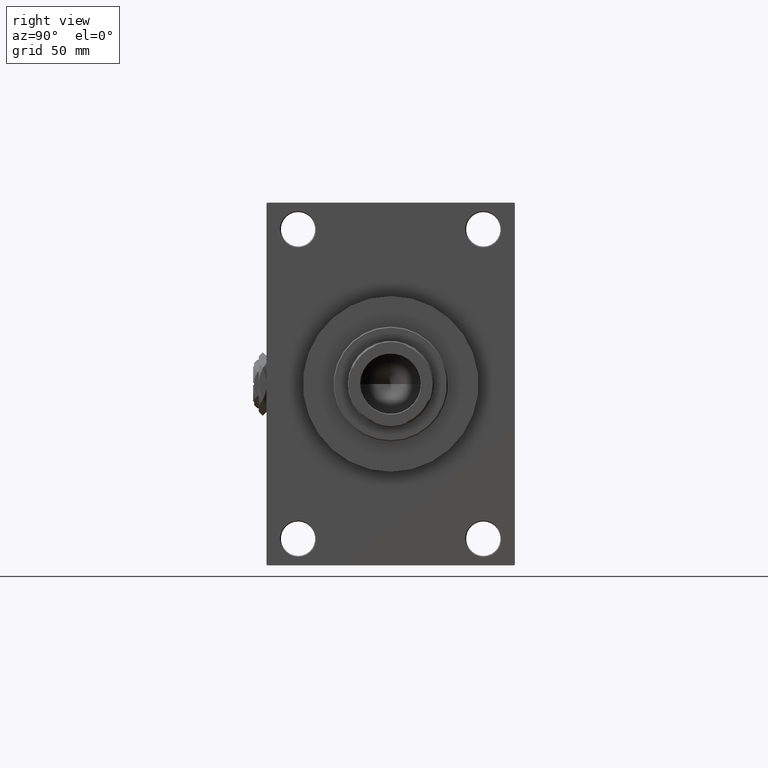
[diagram: clean part render]
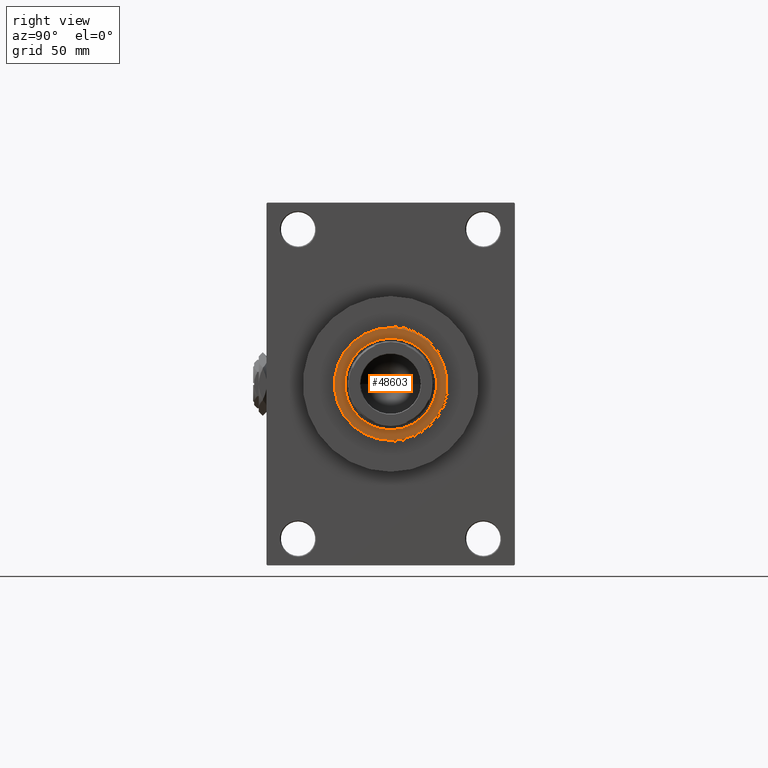
[diagram: same view with one face highlighted and labeled with its STEP entity id]
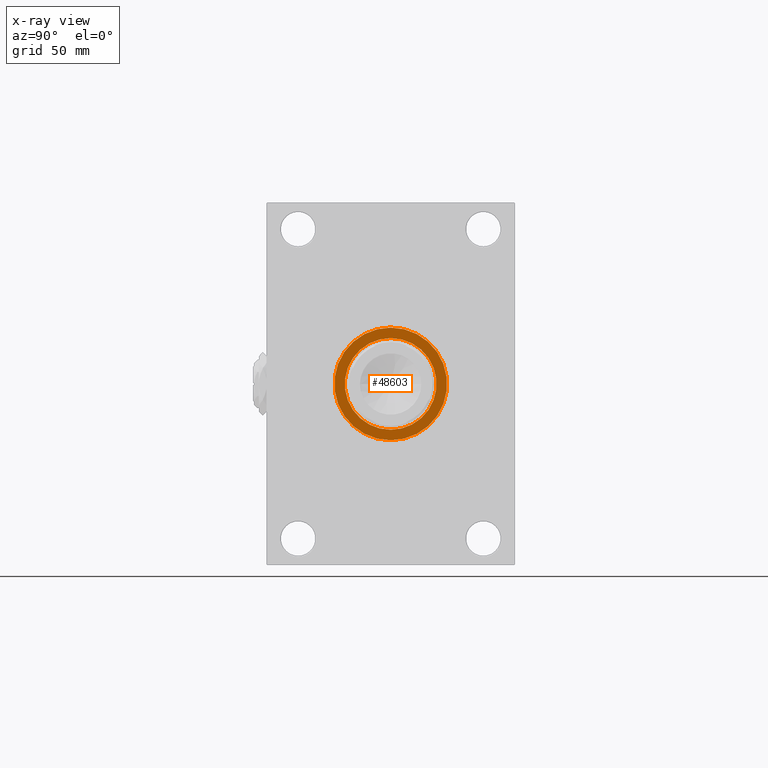
[diagram: x-ray of the same camera — body ghosted, the highlighted face saturated]
A machine part, right view. The second image highlights one B-rep face of the part: STEP entity #48603.
The next image is the same camera in x-ray: the body ghosted, the highlighted face saturated — about 0% of this face is hidden behind the body in this view.
In plain terms, the highlighted planar face has unit normal (1, -0, -0).
Its self-contained STEP definition (entity closure, byte-faithful):
#1347 = PLANE ( 'NONE',  #33082 ) ;
#2191 = CARTESIAN_POINT ( 'NONE',  ( 0.000000000000000000, 0.000000000000000000, 52.25999999999999801 ) ) ;
#3809 = CARTESIAN_POINT ( 'NONE',  ( -29.50000000000000000, 0.000000000000000000, 52.25999999999999801 ) ) ;
#5121 = CARTESIAN_POINT ( 'NONE',  ( 0.000000000000000000, 0.000000000000000000, 52.25999999999999801 ) ) ;
#5617 = DIRECTION ( 'NONE',  ( 0.000000000000000000, 0.000000000000000000, 1.000000000000000000 ) ) ;
#6393 = EDGE_CURVE ( 'NONE', #11798, #15516, #16708, .T. ) ;
#6674 = EDGE_LOOP ( 'NONE', ( #14212, #18284 ) ) ;
#6688 = EDGE_CURVE ( 'NONE', #25860, #38736, #7112, .T. ) ;
#7112 = CIRCLE ( 'NONE', #8727, 29.50000000000000000 ) ;
#7624 = CARTESIAN_POINT ( 'NONE',  ( 0.000000000000000000, 0.000000000000000000, 52.25999999999999801 ) ) ;
#8727 = AXIS2_PLACEMENT_3D ( 'NONE', #47450, #12960, #43659 ) ;
#8820 = ORIENTED_EDGE ( 'NONE', *, *, #6393, .F. ) ;
#9891 = AXIS2_PLACEMENT_3D ( 'NONE', #17266, #28593, #43947 ) ;
#11097 = AXIS2_PLACEMENT_3D ( 'NONE', #2191, #37169, #30106 ) ;
#11798 = VERTEX_POINT ( 'NONE', #49542 ) ;
#11923 = EDGE_LOOP ( 'NONE', ( #43723, #8820 ) ) ;
#12960 = DIRECTION ( 'NONE',  ( 0.000000000000000000, 0.000000000000000000, 1.000000000000000000 ) ) ;
#14212 = ORIENTED_EDGE ( 'NONE', *, *, #24376, .T. ) ;
#15516 = VERTEX_POINT ( 'NONE', #47357 ) ;
#16696 = FACE_BOUND ( 'NONE', #11923, .T. ) ;
#16708 = CIRCLE ( 'NONE', #11097, 24.00000000000000355 ) ;
#16946 = FACE_OUTER_BOUND ( 'NONE', #6674, .T. ) ;
#17266 = CARTESIAN_POINT ( 'NONE',  ( 0.000000000000000000, 0.000000000000000000, 52.25999999999999801 ) ) ;
#18284 = ORIENTED_EDGE ( 'NONE', *, *, #6688, .T. ) ;
#18822 = EDGE_CURVE ( 'NONE', #15516, #11798, #30767, .T. ) ;
#19945 = DIRECTION ( 'NONE',  ( 0.000000000000000000, 0.000000000000000000, 1.000000000000000000 ) ) ;
#24376 = EDGE_CURVE ( 'NONE', #38736, #25860, #35659, .T. ) ;
#25860 = VERTEX_POINT ( 'NONE', #49551 ) ;
#28593 = DIRECTION ( 'NONE',  ( 0.000000000000000000, 0.000000000000000000, 1.000000000000000000 ) ) ;
#30106 = DIRECTION ( 'NONE',  ( 1.000000000000000000, 0.000000000000000000, 0.000000000000000000 ) ) ;
#30767 = CIRCLE ( 'NONE', #9891, 24.00000000000000355 ) ;
#31768 = DIRECTION ( 'NONE',  ( 1.000000000000000000, 0.000000000000000000, 0.000000000000000000 ) ) ;
#33082 = AXIS2_PLACEMENT_3D ( 'NONE', #5121, #5617, #46677 ) ;
#33245 = AXIS2_PLACEMENT_3D ( 'NONE', #7624, #19945, #31768 ) ;
#35659 = CIRCLE ( 'NONE', #33245, 29.50000000000000000 ) ;
#37169 = DIRECTION ( 'NONE',  ( 0.000000000000000000, 0.000000000000000000, 1.000000000000000000 ) ) ;
#38736 = VERTEX_POINT ( 'NONE', #3809 ) ;
#43659 = DIRECTION ( 'NONE',  ( 1.000000000000000000, 0.000000000000000000, 0.000000000000000000 ) ) ;
#43723 = ORIENTED_EDGE ( 'NONE', *, *, #18822, .F. ) ;
#43947 = DIRECTION ( 'NONE',  ( 1.000000000000000000, 0.000000000000000000, 0.000000000000000000 ) ) ;
#46677 = DIRECTION ( 'NONE',  ( 1.000000000000000000, 0.000000000000000000, -0.000000000000000000 ) ) ;
#47357 = CARTESIAN_POINT ( 'NONE',  ( 24.00000000000000355, 0.000000000000000000, 52.25999999999999801 ) ) ;
#47450 = CARTESIAN_POINT ( 'NONE',  ( 0.000000000000000000, 0.000000000000000000, 52.25999999999999801 ) ) ;
#48603 = ADVANCED_FACE ( 'NONE', ( #16696, #16946 ), #1347, .T. ) ;
#49542 = CARTESIAN_POINT ( 'NONE',  ( -24.00000000000000355, 2.939152317953648289E-15, 52.25999999999999801 ) ) ;
#49551 = CARTESIAN_POINT ( 'NONE',  ( 29.50000000000000000, 3.643324227463375391E-15, 52.25999999999999801 ) ) ;